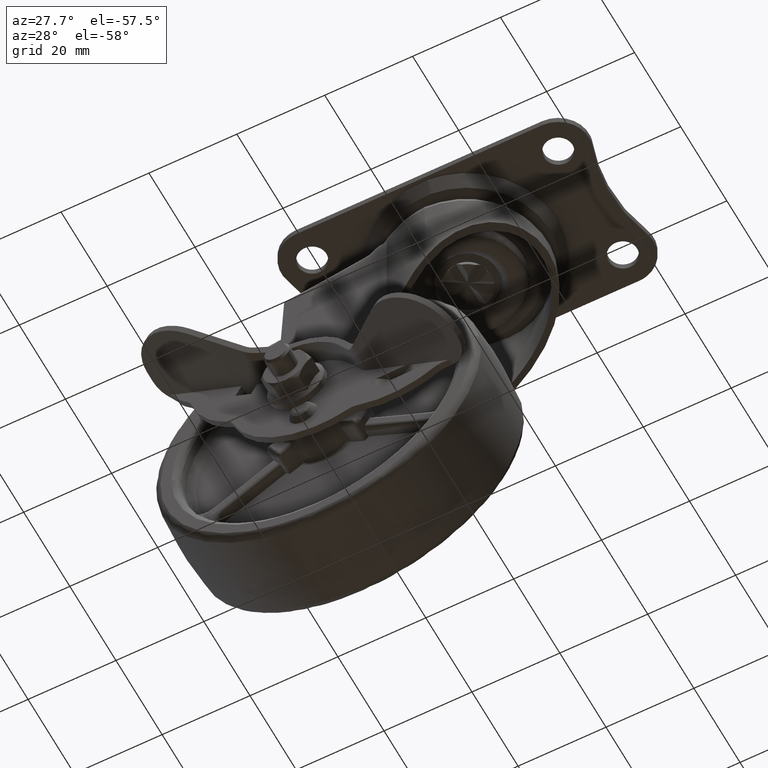
[diagram: clean part render]
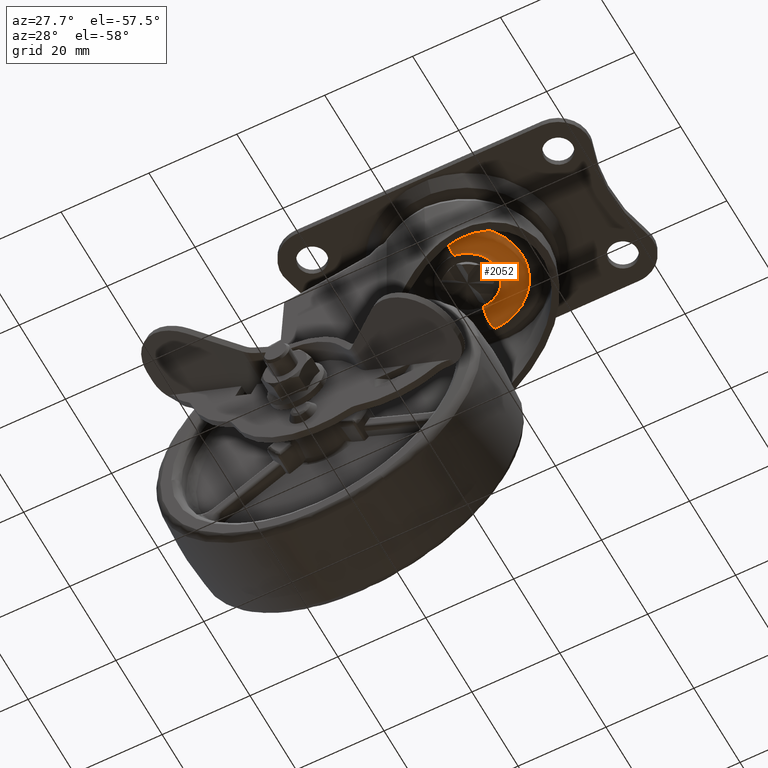
[diagram: same view with one face highlighted and labeled with its STEP entity id]
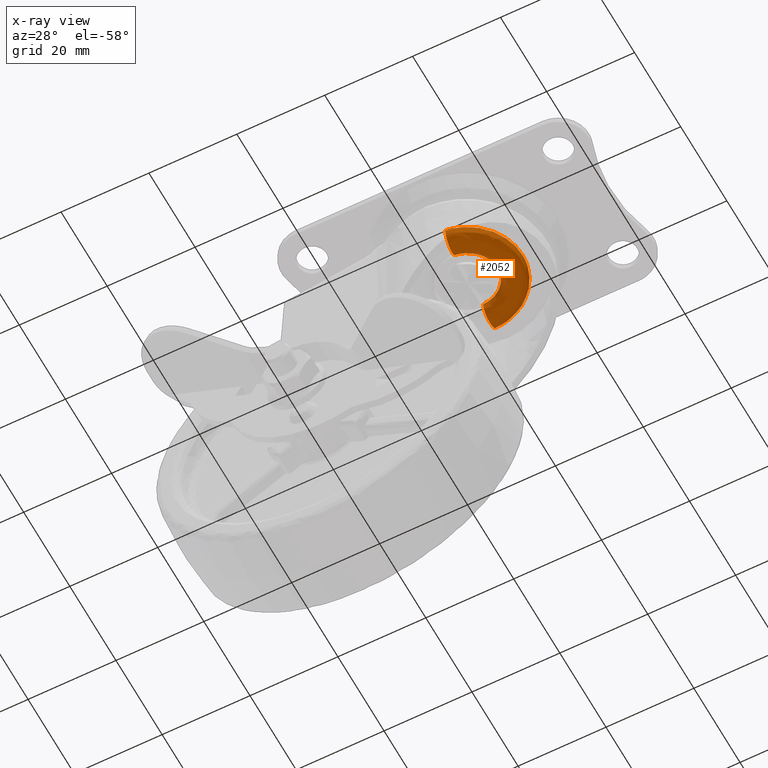
[diagram: x-ray of the same camera — body ghosted, the highlighted face saturated]
A machine part, auxiliary view. The second image highlights one B-rep face of the part: STEP entity #2052.
The next image is the same camera in x-ray: the body ghosted, the highlighted face saturated — about 0% of this face is hidden behind the body in this view.
In plain terms, the highlighted face is a freeform B-spline surface patch.
Its self-contained STEP definition (entity closure, byte-faithful):
#68=CARTESIAN_POINT('',(0.0,6.749999999999998,-8.164991434838941));
#69=VERTEX_POINT('',#68);
#83=CARTESIAN_POINT('',(6.750000000000000,0.0,-8.164991434762200));
#84=VERTEX_POINT('',#83);
#85=CARTESIAN_POINT('',(0.0,6.749999999999998,-8.164991434838941));
#86=CARTESIAN_POINT('',(6.750000000000000,6.750000000000000,-8.164991434762200));
#87=CARTESIAN_POINT('',(6.750000000000000,0.0,-8.164991434762200));
#95=(BOUNDED_CURVE()B_SPLINE_CURVE(2,(#85,#86,#87),.UNSPECIFIED.,.F.,.U.)B_SPLINE_CURVE_WITH_KNOTS((3,3),(0.250000000000000,0.500000000000000),.UNSPECIFIED.)CURVE()GEOMETRIC_REPRESENTATION_ITEM()RATIONAL_B_SPLINE_CURVE((1.0,0.707106781186548,1.0))REPRESENTATION_ITEM(''));
#96=EDGE_CURVE('',#69,#84,#95,.T.);
#98=CARTESIAN_POINT('',(0.779383548299933,-6.704853561759525,-8.164991434856450));
#99=VERTEX_POINT('',#98);
#100=CARTESIAN_POINT('',(6.750000000000000,0.0,-8.164991434762200));
#101=CARTESIAN_POINT('',(6.749999999999999,-6.010818979964242,-8.164991434762198));
#102=CARTESIAN_POINT('',(0.779383548299933,-6.704853561759525,-8.164991434856450));
#110=(BOUNDED_CURVE()B_SPLINE_CURVE(2,(#100,#101,#102),.UNSPECIFIED.,.F.,.U.)B_SPLINE_CURVE_WITH_KNOTS((3,3),(0.500000000000000,0.729999999982735),.UNSPECIFIED.)CURVE()GEOMETRIC_REPRESENTATION_ITEM()RATIONAL_B_SPLINE_CURVE((1.0,0.730538238711851,0.956886118156678))REPRESENTATION_ITEM(''));
#111=EDGE_CURVE('',#84,#99,#110,.T.);
#518=CARTESIAN_POINT('',(1.443302866667893,-12.416395484805291,-8.164991435519488));
#519=VERTEX_POINT('',#518);
#535=CARTESIAN_POINT('',(9.916921810980725,-7.609511271736403,-8.164991434939118));
#536=VERTEX_POINT('',#535);
#537=CARTESIAN_POINT('',(9.916921810980725,-7.609511271736403,-8.164991434939118));
#538=CARTESIAN_POINT('',(6.697087640519058,-11.805686633379183,-8.164991435159644));
#539=CARTESIAN_POINT('',(1.443302866667894,-12.416395484805291,-8.164991435519488));
#547=(BOUNDED_CURVE()B_SPLINE_CURVE(2,(#537,#538,#539),.UNSPECIFIED.,.F.,.U.)B_SPLINE_CURVE_WITH_KNOTS((3,3),(0.605220409680698,0.729999999997839),.UNSPECIFIED.)CURVE()GEOMETRIC_REPRESENTATION_ITEM()RATIONAL_B_SPLINE_CURVE((0.857220246797102,0.834087876132224,0.956886118186406))REPRESENTATION_ITEM(''));
#548=EDGE_CURVE('',#536,#519,#547,.T.);
#596=CARTESIAN_POINT('',(12.500000000001000,0.0,-8.164991434762191));
#597=VERTEX_POINT('',#596);
#598=CARTESIAN_POINT('',(12.500000000001000,0.0,-8.164991434762191));
#599=CARTESIAN_POINT('',(12.500000000001005,-4.243173603344284,-8.164991434762191));
#600=CARTESIAN_POINT('',(9.916921810980725,-7.609511271736403,-8.164991434939118));
#608=(BOUNDED_CURVE()B_SPLINE_CURVE(2,(#598,#599,#600),.UNSPECIFIED.,.F.,.U.)B_SPLINE_CURVE_WITH_KNOTS((3,3),(0.500000000000000,0.605220409680698),.UNSPECIFIED.)CURVE()GEOMETRIC_REPRESENTATION_ITEM()RATIONAL_B_SPLINE_CURVE((1.0,0.876726622095001,0.857220246797102))REPRESENTATION_ITEM(''));
#609=EDGE_CURVE('',#597,#536,#608,.T.);
#611=CARTESIAN_POINT('',(-5.861978E-014,12.500000000001000,-8.164991435495638));
#612=VERTEX_POINT('',#611);
#613=CARTESIAN_POINT('',(-5.861978E-014,12.500000000001000,-8.164991435495638));
#614=CARTESIAN_POINT('',(12.500000000000998,12.500000000001117,-8.164991434762191));
#615=CARTESIAN_POINT('',(12.500000000001000,0.0,-8.164991434762191));
#623=(BOUNDED_CURVE()B_SPLINE_CURVE(2,(#613,#614,#615),.UNSPECIFIED.,.F.,.U.)B_SPLINE_CURVE_WITH_KNOTS((3,3),(0.249999999999998,0.500000000000000),.UNSPECIFIED.)CURVE()GEOMETRIC_REPRESENTATION_ITEM()RATIONAL_B_SPLINE_CURVE((1.000000000000004,0.707106781186545,1.0))REPRESENTATION_ITEM(''));
#624=EDGE_CURVE('',#612,#597,#623,.T.);
#1972=CARTESIAN_POINT('',(1.443302866667893,-12.416395484805287,-8.164991435519488));
#1973=CARTESIAN_POINT('',(1.443302866412558,-12.416395483300576,-11.058112581388635));
#1974=CARTESIAN_POINT('',(1.109257456942909,-9.542681303223089,-11.039934684724090));
#1975=CARTESIAN_POINT('',(0.779383547979378,-6.704853561985363,-11.021983790446013));
#1976=CARTESIAN_POINT('',(0.779383548299933,-6.704853561759525,-8.164991434856450));
#1984=(BOUNDED_CURVE()B_SPLINE_CURVE(2,(#1972,#1973,#1974,#1975,#1976),.UNSPECIFIED.,.F.,.U.)B_SPLINE_CURVE_WITH_KNOTS((3,2,3),(-3.782392940034301,-2.0,-0.232800892135102),.UNSPECIFIED.)CURVE()GEOMETRIC_REPRESENTATION_ITEM()RATIONAL_B_SPLINE_CURVE((0.890230783878903,0.650575586159834,0.956886118190660,0.653186699966931,0.886184622687265))REPRESENTATION_ITEM(''));
#1985=EDGE_CURVE('',#519,#99,#1984,.T.);
#1990=CARTESIAN_POINT('',(-5.861978E-014,12.500000000000993,-8.164991435495638));
#1991=CARTESIAN_POINT('',(0.0,12.499999998524865,-11.058112581388935));
#1992=CARTESIAN_POINT('',(0.0,9.606935961099511,-11.039934684724090));
#1993=CARTESIAN_POINT('',(0.0,6.750000000152513,-11.021983790445796));
#1994=CARTESIAN_POINT('',(0.0,6.749999999999998,-8.164991434838941));
#2002=(BOUNDED_CURVE()B_SPLINE_CURVE(2,(#1990,#1991,#1992,#1993,#1994),.UNSPECIFIED.,.F.,.U.)B_SPLINE_CURVE_WITH_KNOTS((3,2,3),(-3.782392940054407,-2.0,-0.232800892120407),.UNSPECIFIED.)CURVE()GEOMETRIC_REPRESENTATION_ITEM()RATIONAL_B_SPLINE_CURVE((0.930341413634063,0.679888205909526,1.0,0.682616967209737,0.926112946822546))REPRESENTATION_ITEM(''));
#2003=EDGE_CURVE('',#612,#69,#2002,.T.);
#2010=CARTESIAN_POINT('',(0.0,12.470960842778696,-7.757398646091837));
#2011=CARTESIAN_POINT('',(12.470960842778695,12.470960842778695,-7.757398646091839));
#2012=CARTESIAN_POINT('',(12.470960842778696,7.636009E-016,-7.757398646091837));
#2013=CARTESIAN_POINT('',(12.470960842778691,-11.105287131832208,-7.757398646091837));
#2014=CARTESIAN_POINT('',(1.439949882679559,-12.387550551965091,-7.757398646091839));
#2015=CARTESIAN_POINT('',(0.0,12.944082074098979,-11.060902868080161));
#2016=CARTESIAN_POINT('',(12.944082074098976,12.944082074098976,-11.060902868080161));
#2017=CARTESIAN_POINT('',(12.944082074098979,7.925703E-016,-11.060902868080161));
#2018=CARTESIAN_POINT('',(12.944082074098977,-11.526597661807948,-11.060902868080161));
#2019=CARTESIAN_POINT('',(1.494578461032233,-12.857507377591860,-11.060902868080165));
#2020=CARTESIAN_POINT('',(0.0,9.606935961099511,-11.039934684724090));
#2021=CARTESIAN_POINT('',(9.606935961099511,9.606935961099511,-11.039934684724093));
#2022=CARTESIAN_POINT('',(9.606935961099511,5.882357E-016,-11.039934684724090));
#2023=CARTESIAN_POINT('',(9.606935961099509,-8.554896743735029,-11.039934684724093));
#2024=CARTESIAN_POINT('',(1.109257456942908,-9.542681303223089,-11.039934684724090));
#2025=CARTESIAN_POINT('',(0.0,6.309547825780611,-11.019216311396608));
#2026=CARTESIAN_POINT('',(6.309547825780608,6.309547825780608,-11.019216311396605));
#2027=CARTESIAN_POINT('',(6.309547825780611,3.863356E-016,-11.019216311396608));
#2028=CARTESIAN_POINT('',(6.309547825780610,-5.618599974828318,-11.019216311396605));
#2029=CARTESIAN_POINT('',(0.728527077106074,-6.267347290818991,-11.019216311396610));
#2030=CARTESIAN_POINT('',(0.0,6.779326314518768,-7.755398617735687));
#2031=CARTESIAN_POINT('',(6.779326314518767,6.779326314518767,-7.755398617735685));
#2032=CARTESIAN_POINT('',(6.779326314518768,4.151003E-016,-7.755398617735687));
#2033=CARTESIAN_POINT('',(6.779326314518769,-6.036933820276671,-7.755398617735685));
#2034=CARTESIAN_POINT('',(0.782769688262663,-6.733983731333468,-7.755398617735687));
#2042=(BOUNDED_SURFACE()B_SPLINE_SURFACE(2,2,((#2010,#2015,#2020,#2025,#2030),(#2011,#2016,#2021,#2026,#2031),(#2012,#2017,#2022,#2027,#2032),(#2013,#2018,#2023,#2028,#2033),(#2014,#2019,#2024,#2029,#2034)),.UNSPECIFIED.,.F.,.F.,.U.)B_SPLINE_SURFACE_WITH_KNOTS((3,2,3),(3,2,3),(0.0,20.662564467610959,39.672123777813027),(0.0,5.271729776306698,10.502586934094030),.UNSPECIFIED.)GEOMETRIC_REPRESENTATION_ITEM()RATIONAL_B_SPLINE_SURFACE(((0.985814503857690,0.648045331837257,1.0,0.650774096303254,0.980618400496759),(0.697076120669824,0.458237248658411,0.707106781186548,0.460166776516579,0.693401920747564),(0.985814503857690,0.648045331837257,1.0,0.650774096303254,0.980618400496759),(0.720175191324854,0.473421895312719,0.730538238691624,0.475415362099513,0.716379239127500),(0.943312213852436,0.620105581993331,0.956886118190660,0.622716698830656,0.938340134677678)))REPRESENTATION_ITEM('')SURFACE());
#2043=ORIENTED_EDGE('',*,*,#111,.F.);
#2044=ORIENTED_EDGE('',*,*,#96,.F.);
#2045=ORIENTED_EDGE('',*,*,#2003,.F.);
#2046=ORIENTED_EDGE('',*,*,#624,.T.);
#2047=ORIENTED_EDGE('',*,*,#609,.T.);
#2048=ORIENTED_EDGE('',*,*,#548,.T.);
#2049=ORIENTED_EDGE('',*,*,#1985,.T.);
#2050=EDGE_LOOP('',(#2043,#2044,#2045,#2046,#2047,#2048,#2049));
#2051=FACE_OUTER_BOUND('',#2050,.T.);
#2052=ADVANCED_FACE('',(#2051),#2042,.T.);